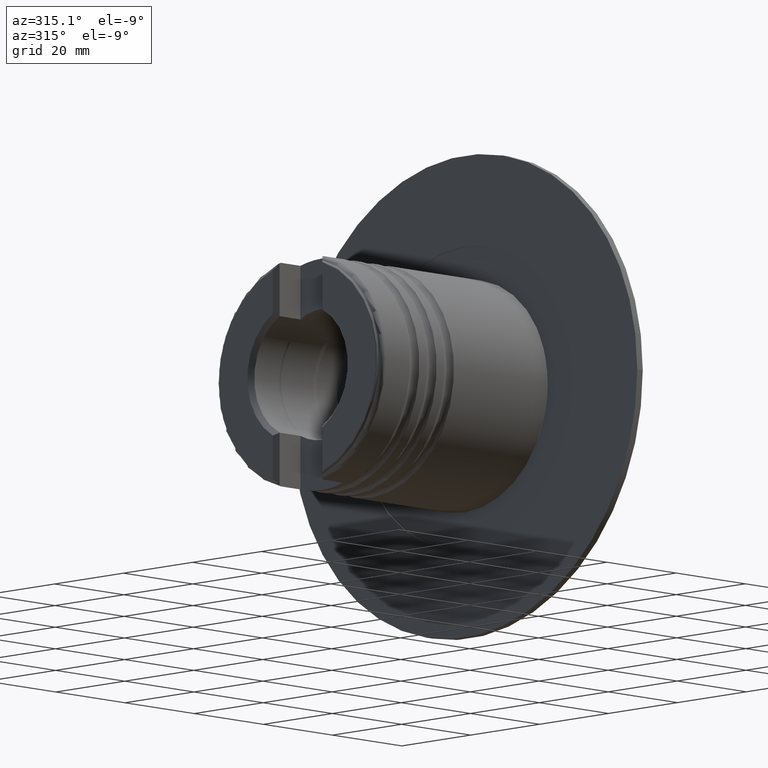
[diagram: clean part render]
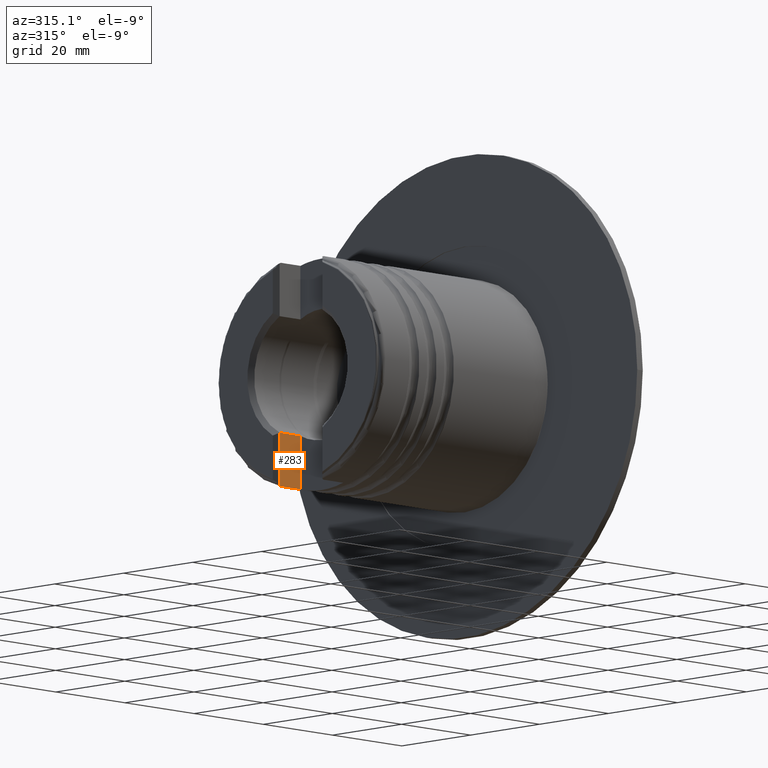
[diagram: same view with one face highlighted and labeled with its STEP entity id]
A machine part, auxiliary view. The second image highlights one B-rep face of the part: STEP entity #283.
In plain terms, the highlighted planar face has unit normal (-0, 1, 0).
Its self-contained STEP definition (entity closure, byte-faithful):
#42 = DIRECTION ( 'NONE',  ( -1.000000000000000000, -1.445602896647339656E-16, 0.0000000000000000000 ) ) ;
#181 = VERTEX_POINT ( 'NONE', #308 ) ;
#194 = VERTEX_POINT ( 'NONE', #1983 ) ;
#283 = ADVANCED_FACE ( 'NONE', ( #670 ), #3305, .F. ) ;
#297 = EDGE_LOOP ( 'NONE', ( #1413, #2116, #1650, #1844, #1543 ) ) ;
#308 = CARTESIAN_POINT ( 'NONE',  ( -42.79994866000001252, 6.199999999999992184, -23.18534019590827100 ) ) ;
#359 = B_SPLINE_CURVE_WITH_KNOTS ( 'NONE', 3,
 ( #2376, #3630, #4453, #4868, #2438, #376 ),
 .UNSPECIFIED., .F., .F.,
 ( 4, 2, 4 ),
 ( 0.006036584063401352097, 0.006297327253664214766, 0.006558070443927077435 ),
 .UNSPECIFIED. ) ;
#376 = CARTESIAN_POINT ( 'NONE',  ( -48.29994865999999831, 6.200000000000000178, -23.18534019590826745 ) ) ;
#572 = DIRECTION ( 'NONE',  ( 1.000000000000000000, -0.0000000000000000000, -0.0000000000000000000 ) ) ;
#670 = FACE_OUTER_BOUND ( 'NONE', #297, .T. ) ;
#756 = CARTESIAN_POINT ( 'NONE',  ( -42.79994866000001252, 6.199999999999993960, -25.00000000000000000 ) ) ;
#1010 = CARTESIAN_POINT ( 'NONE',  ( -8.962737959213506608E-16, 6.200000000000000178, -23.18534019590826745 ) ) ;
#1121 = CARTESIAN_POINT ( 'NONE',  ( -48.29994865999999831, 6.200000000000000178, -23.18534019590826745 ) ) ;
#1376 = DIRECTION ( 'NONE',  ( -1.445602896647339656E-16, 1.000000000000000000, 0.0000000000000000000 ) ) ;
#1413 = ORIENTED_EDGE ( 'NONE', *, *, #2160, .T. ) ;
#1454 = VECTOR ( 'NONE', #572, 1000.000000000000000 ) ;
#1543 = ORIENTED_EDGE ( 'NONE', *, *, #5282, .F. ) ;
#1560 = VERTEX_POINT ( 'NONE', #2636 ) ;
#1650 = ORIENTED_EDGE ( 'NONE', *, *, #5184, .T. ) ;
#1678 = CARTESIAN_POINT ( 'NONE',  ( -42.79994866000001252, 6.199999999999993960, -25.00000000000000000 ) ) ;
#1749 = LINE ( 'NONE', #4066, #2394 ) ;
#1844 = ORIENTED_EDGE ( 'NONE', *, *, #2779, .F. ) ;
#1952 = VECTOR ( 'NONE', #2056, 1000.000000000000000 ) ;
#1983 = CARTESIAN_POINT ( 'NONE',  ( -48.79994866000000542, 6.199999999999993072, -12.07644918839970316 ) ) ;
#2056 = DIRECTION ( 'NONE',  ( -0.0000000000000000000, -0.0000000000000000000, 1.000000000000000000 ) ) ;
#2081 = LINE ( 'NONE', #4195, #5105 ) ;
#2116 = ORIENTED_EDGE ( 'NONE', *, *, #4819, .T. ) ;
#2160 = EDGE_CURVE ( 'NONE', #5314, #4603, #359, .T. ) ;
#2215 = AXIS2_PLACEMENT_3D ( 'NONE', #1678, #1376, #42 ) ;
#2340 = LINE ( 'NONE', #1010, #1454 ) ;
#2376 = CARTESIAN_POINT ( 'NONE',  ( -48.79994866000000542, 6.199999999999993072, -23.04663030844386995 ) ) ;
#2394 = VECTOR ( 'NONE', #3231, 1000.000000000000000 ) ;
#2438 = CARTESIAN_POINT ( 'NONE',  ( -48.38688188749524954, 6.199999999999993960, -23.18534019590827100 ) ) ;
#2636 = CARTESIAN_POINT ( 'NONE',  ( -42.79994866000001252, 6.199999999999992184, -12.07644918839970494 ) ) ;
#2779 = EDGE_CURVE ( 'NONE', #194, #1560, #1749, .T. ) ;
#3231 = DIRECTION ( 'NONE',  ( 1.000000000000000000, -0.0000000000000000000, -0.0000000000000000000 ) ) ;
#3305 = PLANE ( 'NONE',  #2215 ) ;
#3376 = LINE ( 'NONE', #756, #1952 ) ;
#3630 = CARTESIAN_POINT ( 'NONE',  ( -48.72535888858941178, 6.199999999999993960, -23.09122583663225114 ) ) ;
#4066 = CARTESIAN_POINT ( 'NONE',  ( -8.962737959213506608E-16, 6.200000000000000178, -12.07644918839970316 ) ) ;
#4195 = CARTESIAN_POINT ( 'NONE',  ( -48.79994866000000542, 6.199999999999993072, -25.00000000000000000 ) ) ;
#4453 = CARTESIAN_POINT ( 'NONE',  ( -48.64363953494827086, 6.199999999999993072, -23.12648771800309078 ) ) ;
#4538 = CARTESIAN_POINT ( 'NONE',  ( -48.79994866000000542, 6.199999999999993072, -23.04663030844386995 ) ) ;
#4603 = VERTEX_POINT ( 'NONE', #1121 ) ;
#4819 = EDGE_CURVE ( 'NONE', #4603, #181, #2340, .T. ) ;
#4868 = CARTESIAN_POINT ( 'NONE',  ( -48.47464520240500008, 6.199999999999991296, -23.17343820292965262 ) ) ;
#4985 = DIRECTION ( 'NONE',  ( -0.0000000000000000000, -0.0000000000000000000, 1.000000000000000000 ) ) ;
#5105 = VECTOR ( 'NONE', #4985, 1000.000000000000000 ) ;
#5184 = EDGE_CURVE ( 'NONE', #181, #1560, #3376, .T. ) ;
#5282 = EDGE_CURVE ( 'NONE', #5314, #194, #2081, .T. ) ;
#5314 = VERTEX_POINT ( 'NONE', #4538 ) ;